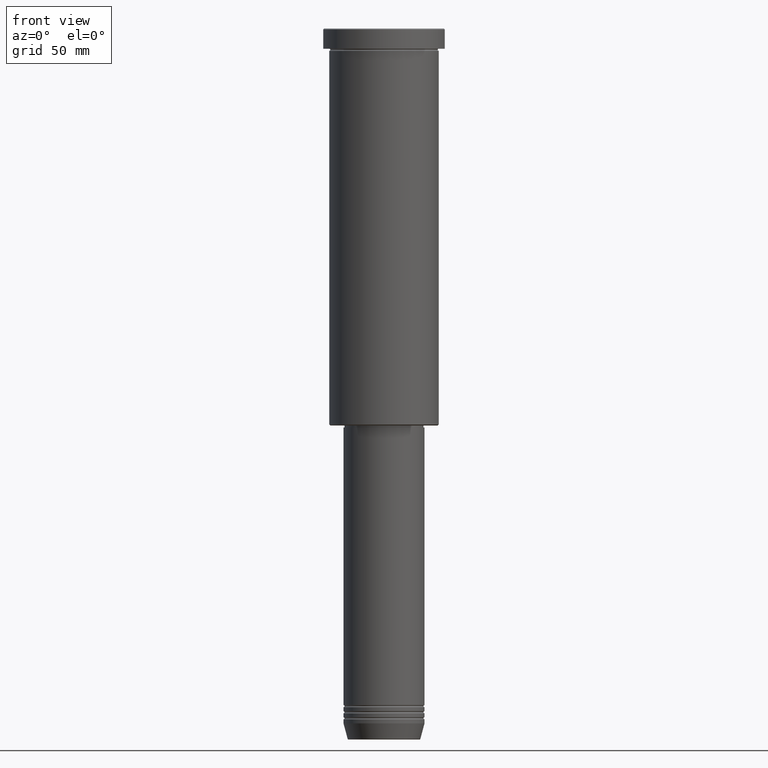
[diagram: clean part render]
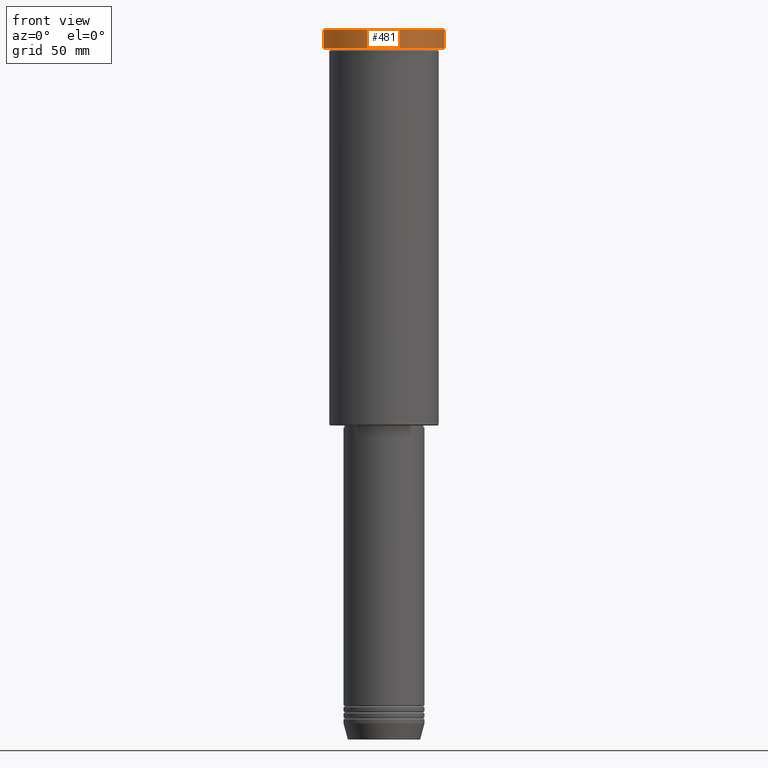
[diagram: same view with one face highlighted and labeled with its STEP entity id]
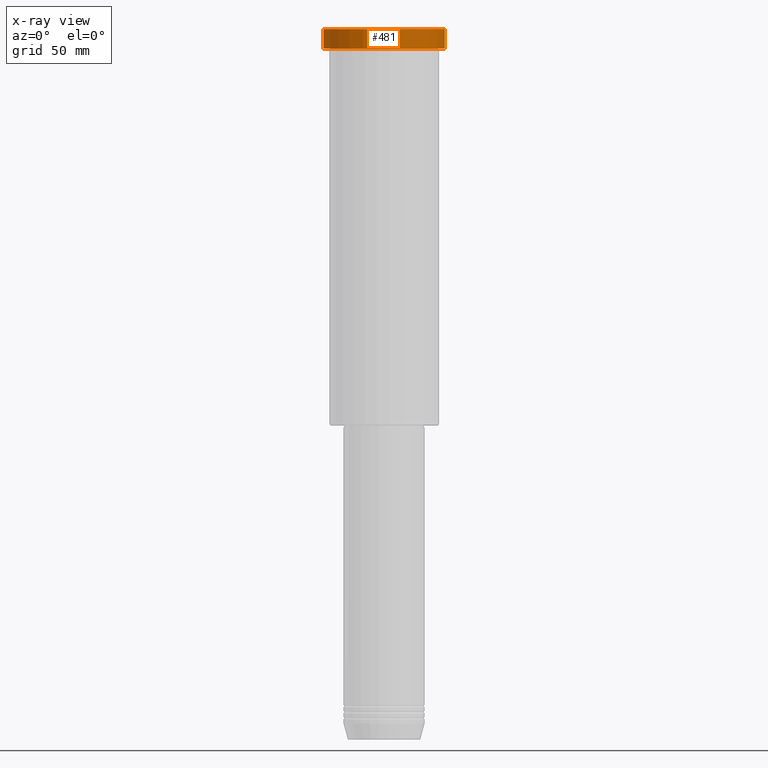
[diagram: x-ray of the same camera — body ghosted, the highlighted face saturated]
A machine part, front view. The second image highlights one B-rep face of the part: STEP entity #481.
The next image is the same camera in x-ray: the body ghosted, the highlighted face saturated — about 0% of this face is hidden behind the body in this view.
In plain terms, the highlighted cylindrical surface (partial cylindrical patch) has radius 30 mm, axis along (-0, -0, 1).
Its self-contained STEP definition (entity closure, byte-faithful):
#55 = ORIENTED_EDGE ( 'NONE', *, *, #927, .T. ) ;
#58 = FACE_OUTER_BOUND ( 'NONE', #878, .T. ) ;
#105 = CARTESIAN_POINT ( 'NONE',  ( -30.00000000000000000, 3.673940397442059178E-15, 0.000000000000000000 ) ) ;
#108 = CARTESIAN_POINT ( 'NONE',  ( 30.00000000000000000, 0.000000000000000000, -9.999999999999992895 ) ) ;
#178 = VERTEX_POINT ( 'NONE', #108 ) ;
#257 = CYLINDRICAL_SURFACE ( 'NONE', #1011, 30.00000000000000000 ) ;
#275 = VECTOR ( 'NONE', #381, 1000.000000000000000 ) ;
#281 = LINE ( 'NONE', #830, #275 ) ;
#288 = DIRECTION ( 'NONE',  ( -0.000000000000000000, -0.000000000000000000, 1.000000000000000000 ) ) ;
#344 = EDGE_CURVE ( 'NONE', #1076, #1176, #379, .T. ) ;
#346 = VECTOR ( 'NONE', #288, 1000.000000000000000 ) ;
#379 = LINE ( 'NONE', #105, #346 ) ;
#381 = DIRECTION ( 'NONE',  ( -0.000000000000000000, -0.000000000000000000, 1.000000000000000000 ) ) ;
#443 = AXIS2_PLACEMENT_3D ( 'NONE', #861, #868, #1014 ) ;
#456 = ORIENTED_EDGE ( 'NONE', *, *, #850, .T. ) ;
#481 = ADVANCED_FACE ( 'NONE', ( #58 ), #257, .T. ) ;
#530 = DIRECTION ( 'NONE',  ( 0.000000000000000000, 0.000000000000000000, -1.000000000000000000 ) ) ;
#537 = CARTESIAN_POINT ( 'NONE',  ( -30.00000000000000000, 3.673940397442059178E-15, -0.5000000000000073275 ) ) ;
#586 = DIRECTION ( 'NONE',  ( -0.000000000000000000, -0.000000000000000000, 1.000000000000000000 ) ) ;
#605 = CARTESIAN_POINT ( 'NONE',  ( 0.000000000000000000, 0.000000000000000000, 0.000000000000000000 ) ) ;
#610 = VERTEX_POINT ( 'NONE', #613 ) ;
#613 = CARTESIAN_POINT ( 'NONE',  ( 30.00000000000000000, 0.000000000000000000, -0.5000000000000073275 ) ) ;
#616 = DIRECTION ( 'NONE',  ( 1.000000000000000000, 0.000000000000000000, 0.000000000000000000 ) ) ;
#697 = ORIENTED_EDGE ( 'NONE', *, *, #1106, .T. ) ;
#787 = CIRCLE ( 'NONE', #1149, 30.00000000000000000 ) ;
#830 = CARTESIAN_POINT ( 'NONE',  ( 30.00000000000000000, 0.000000000000000000, 0.000000000000000000 ) ) ;
#850 = EDGE_CURVE ( 'NONE', #178, #610, #281, .T. ) ;
#861 = CARTESIAN_POINT ( 'NONE',  ( 0.000000000000000000, 0.000000000000000000, -9.999999999999992895 ) ) ;
#868 = DIRECTION ( 'NONE',  ( -0.000000000000000000, -0.000000000000000000, 1.000000000000000000 ) ) ;
#878 = EDGE_LOOP ( 'NONE', ( #953, #55, #456, #697 ) ) ;
#919 = CIRCLE ( 'NONE', #443, 30.00000000000000000 ) ;
#927 = EDGE_CURVE ( 'NONE', #1076, #178, #919, .T. ) ;
#953 = ORIENTED_EDGE ( 'NONE', *, *, #344, .F. ) ;
#1011 = AXIS2_PLACEMENT_3D ( 'NONE', #605, #586, #1140 ) ;
#1014 = DIRECTION ( 'NONE',  ( 1.000000000000000000, 0.000000000000000000, 0.000000000000000000 ) ) ;
#1070 = CARTESIAN_POINT ( 'NONE',  ( 0.000000000000000000, 0.000000000000000000, -0.5000000000000073275 ) ) ;
#1076 = VERTEX_POINT ( 'NONE', #1079 ) ;
#1079 = CARTESIAN_POINT ( 'NONE',  ( -30.00000000000000000, 3.673940397442059178E-15, -9.999999999999992895 ) ) ;
#1106 = EDGE_CURVE ( 'NONE', #610, #1176, #787, .T. ) ;
#1140 = DIRECTION ( 'NONE',  ( 1.000000000000000000, 0.000000000000000000, 0.000000000000000000 ) ) ;
#1149 = AXIS2_PLACEMENT_3D ( 'NONE', #1070, #530, #616 ) ;
#1176 = VERTEX_POINT ( 'NONE', #537 ) ;